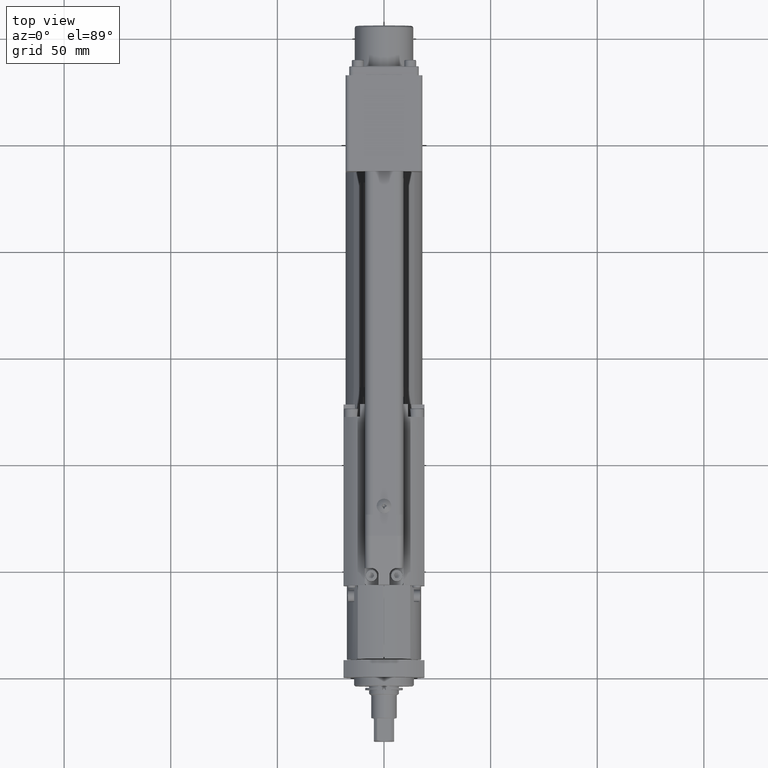
[diagram: clean part render]
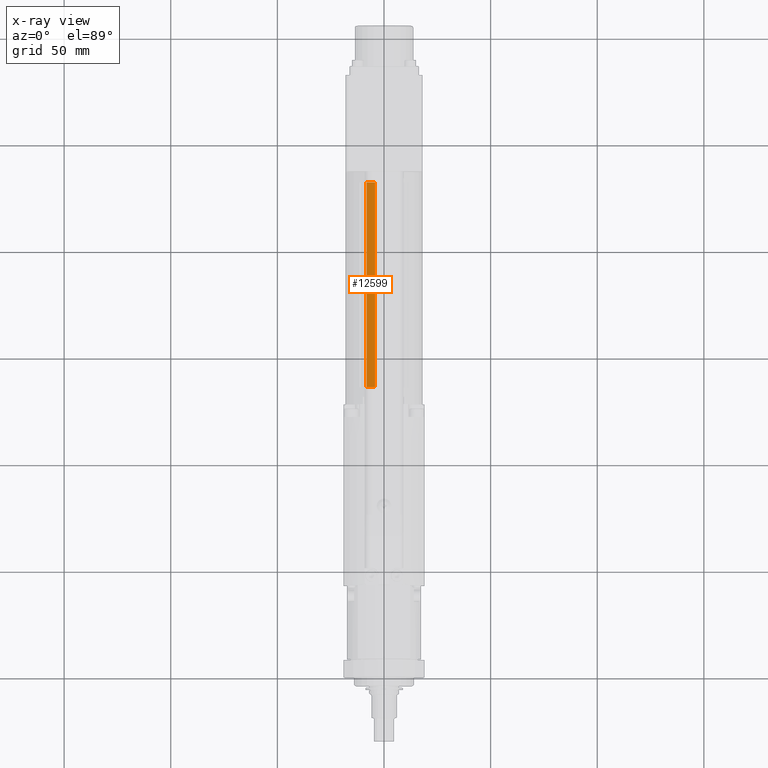
[diagram: x-ray — body ghosted, one internal face saturated and labeled with its STEP entity id]
A machine part, top view, then the same camera in x-ray: the body is ghosted and one INTERNAL B-rep face — a face not visible from any outside direction — is saturated and labeled: STEP entity #12599.
In plain terms, the highlighted cylindrical surface (partial cylindrical patch) has radius 20.5 mm, axis along (0, 1, -0).
Its self-contained STEP definition (entity closure, byte-faithful):
#288=CYLINDRICAL_SURFACE('',#13667,20.5000000000002);
#970=FACE_OUTER_BOUND('',#1712,.T.);
#1712=EDGE_LOOP('',(#9676,#9677,#9678,#9679));
#2341=CIRCLE('',#13528,20.5000000000002);
#2381=CIRCLE('',#13623,20.4999999999808);
#3360=LINE('',#21016,#4404);
#3361=LINE('',#21018,#4405);
#4404=VECTOR('',#16455,10.);
#4405=VECTOR('',#16458,10.);
#5342=VERTEX_POINT('',#20460);
#5344=VERTEX_POINT('',#20466);
#5441=VERTEX_POINT('',#20739);
#5496=VERTEX_POINT('',#20894);
#6796=EDGE_CURVE('',#5342,#5344,#2341,.T.);
#6980=EDGE_CURVE('',#5496,#5441,#2381,.T.);
#7032=EDGE_CURVE('',#5496,#5342,#3360,.T.);
#7033=EDGE_CURVE('',#5441,#5344,#3361,.T.);
#9676=ORIENTED_EDGE('',*,*,#6980,.T.);
#9677=ORIENTED_EDGE('',*,*,#7033,.T.);
#9678=ORIENTED_EDGE('',*,*,#6796,.F.);
#9679=ORIENTED_EDGE('',*,*,#7032,.F.);
#12599=ADVANCED_FACE('',(#970),#288,.T.);
#13528=AXIS2_PLACEMENT_3D('',#20547,#15992,#15993);
#13623=AXIS2_PLACEMENT_3D('',#20913,#16326,#16327);
#13667=AXIS2_PLACEMENT_3D('',#21017,#16456,#16457);
#15992=DIRECTION('center_axis',(6.90085835111325E-17,1.,-2.22044604925031E-16));
#15993=DIRECTION('ref_axis',(-0.397274065155325,2.31185657726956E-16,0.91770001479512));
#16326=DIRECTION('center_axis',(6.90085835111325E-17,1.,-2.22044604925031E-16));
#16327=DIRECTION('ref_axis',(-0.397274065155325,2.31185657726956E-16,0.917700014795119));
#16455=DIRECTION('',(6.90085835111325E-17,1.,-2.22044604925031E-16));
#16456=DIRECTION('center_axis',(6.90085835111325E-17,1.,-2.22044604925031E-16));
#16457=DIRECTION('ref_axis',(-0.397274065155325,2.31185657726956E-16,0.91770001479512));
#16458=DIRECTION('',(6.90085835111325E-17,1.,-2.22044604925031E-16));
#20460=CARTESIAN_POINT('',(-8.14411833567421,232.,18.8128503033056));
#20466=CARTESIAN_POINT('',(-4.24369938318948,232.,20.0559471365792));
#20547=CARTESIAN_POINT('Origin',(1.00170532681954E-11,232.,5.43300264418119E-12));
#20739=CARTESIAN_POINT('',(-4.24369938292805,136.,20.0559471362013));
#20894=CARTESIAN_POINT('',(-8.14411833550918,136.,18.8128503029077));
#20913=CARTESIAN_POINT('Origin',(1.67346794601168E-10,136.,-3.74579463295362E-10));
#21016=CARTESIAN_POINT('',(-8.14411833567422,136.,18.8128503033056));
#21017=CARTESIAN_POINT('Origin',(1.00104284441783E-11,136.,5.454318926254E-12));
#21018=CARTESIAN_POINT('',(-4.24369938318949,136.,20.0559471365792));